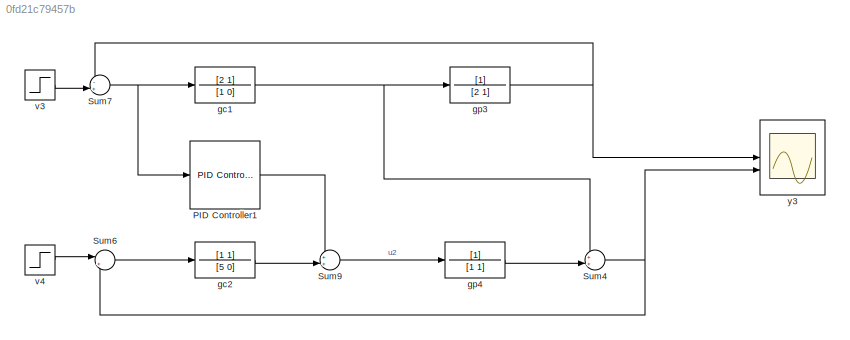
MODEL slx_0fd21c79457b
KIND model
CONFIG AbsTol = auto
CONFIG EnableMultiTasking = off
CONFIG FixedStep = auto
CONFIG MaxStep = auto
CONFIG MinStep = auto
CONFIG RelTol = 1e-3
CONFIG SampleTimeConstraint = Unconstrained
CONFIG SolverName = VariableStepAuto
CONFIG StartTime = 0.0
CONFIG StopTime = 25
BLOCK [Reference] PID Controller1  REF=slpidlib/PID Controller
  LibrarySourceBlock = simulink/Continuous/PID Controller
  SourceBlock = slpidlib/PID Controller
  SourceType = PID 1dof
BLOCK [Sum] Sum4
  Inputs = ++|
BLOCK [Sum] Sum6
  Inputs = |+-
BLOCK [Sum] Sum7
  Inputs = -+|
BLOCK [Sum] Sum9
  Inputs = ++|
BLOCK [TransferFcn] gc1
  Denominator = [1 0]
  Numerator = [2 1]
BLOCK [TransferFcn] gc2
  Denominator = [5 0]
  Numerator = [1 1]
BLOCK [TransferFcn] gp3
  Denominator = [2 1]
BLOCK [TransferFcn] gp4
  Denominator = [1 1]
BLOCK [Step] v3
  SampleTime = 0
BLOCK [Step] v4
  SampleTime = 0
BLOCK [Scope] y3
  Floating = off
  NumInputPorts = 2
  ScopeSpecificationString = Simulink.scopes.TimeScopeBlockCfg('CurrentConfiguration', extmgr.ConfigurationSet(extmgr.Configuration('Core','General UI',true),extmgr.Configuration('Core','Source UI',true),extmgr.Configuration('Sources','WiredSimulink',true,'DataLoggingVariableName','ScopeData1'),extmgr.Configuration('Visuals','Time Domain',true,'SerializedDisplays',{struct('MinYLimReal','-0.27624','MaxYLimReal','2.25292','YLab...<+1453ch>
LINE PID Controller1:1 -> Sum9:1
NET Sum4:1 -> Sum6:2, y3:2
LINE Sum6:1 -> gc2:1
NET Sum7:1 -> PID Controller1:1, gc1:1
LINE Sum9:1 -> gp4:1
NET gc1:1 -> Sum4:1, gp3:1
LINE gc2:1 -> Sum9:2
NET gp3:1 -> Sum7:1, y3:1
LINE gp4:1 -> Sum4:2
LINE v3:1 -> Sum7:2
LINE v4:1 -> Sum6:1
note: NET lines group one-source signal fan-out (src -> all destinations, sorted); 1:1 wires keep LINE
